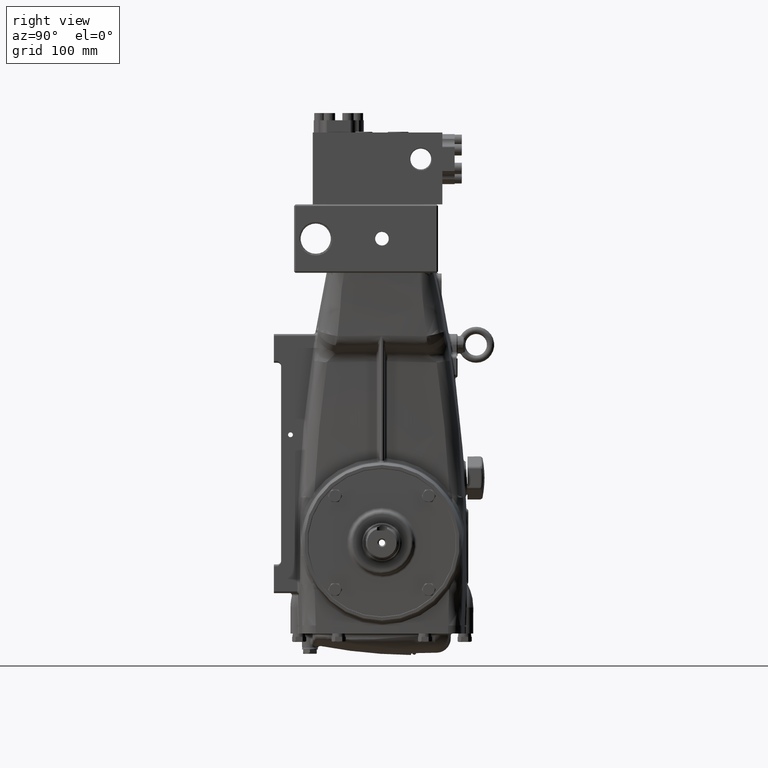
[diagram: clean part render]
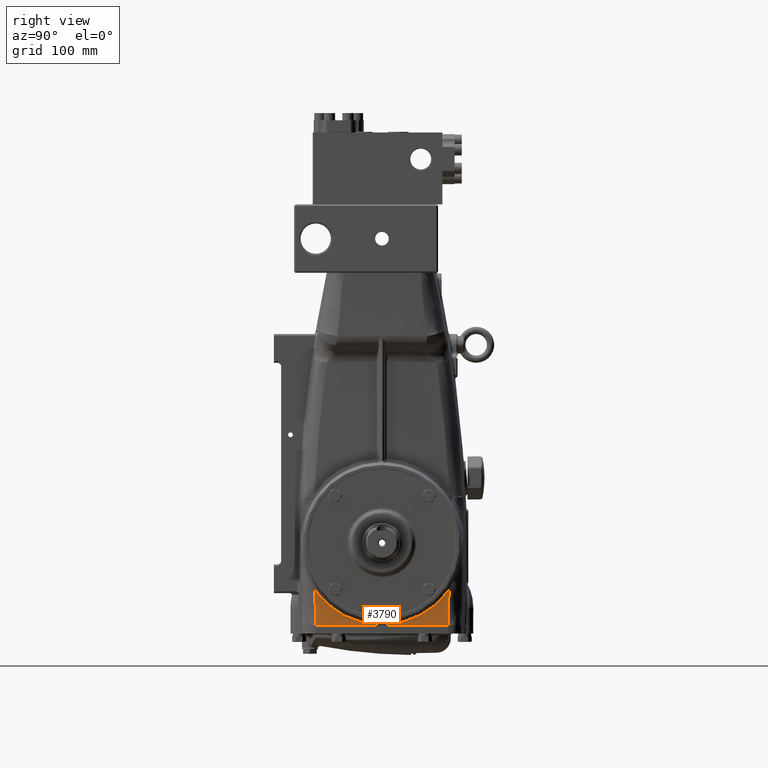
[diagram: same view with one face highlighted and labeled with its STEP entity id]
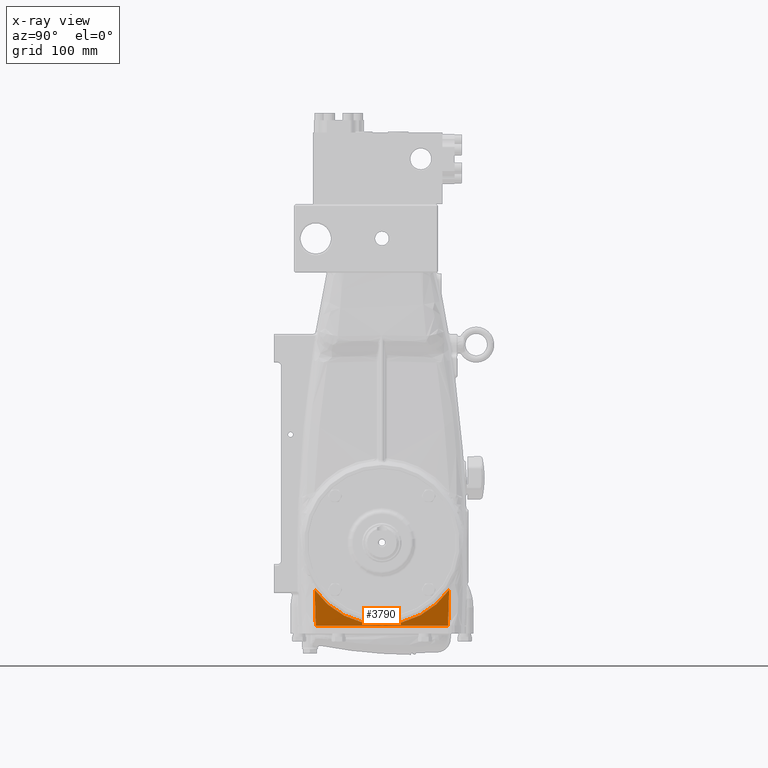
[diagram: x-ray of the same camera — body ghosted, the highlighted face saturated]
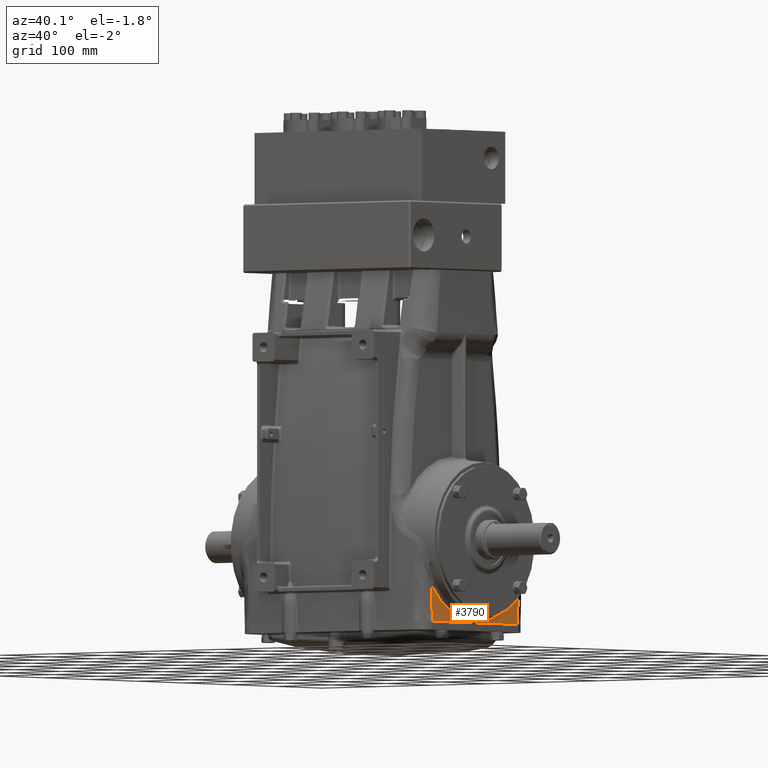
[diagram: same view with one face highlighted and labeled with its STEP entity id]
A machine part, right view. The second image highlights one B-rep face of the part: STEP entity #3790.
The next image is the same camera in x-ray: the body ghosted, the highlighted face saturated — about 0% of this face is hidden behind the body in this view.
A second angle (auxiliary view) of the same face is appended — the face is thin or edge-on in the first view.
In plain terms, the highlighted cylindrical surface (partial cylindrical patch) has radius 1800 mm, axis along (0, 0, 1).
Its self-contained STEP definition (entity closure, byte-faithful):
#3790 = ADVANCED_FACE ( 'NONE', ( #25463 ), #74864, .T. ) ;
#4067 = CARTESIAN_POINT ( 'NONE',  ( 6.671523450271858557, 1.749093421267381210, -4.138678691375889507 ) ) ;
#4670 = EDGE_LOOP ( 'NONE', ( #74125, #64896, #47239, #36502 ) ) ;
#4861 = CARTESIAN_POINT ( 'NONE',  ( 6.667287197148020539, 1.912214584812738538, -4.065908431730054673 ) ) ;
#5657 = EDGE_CURVE ( 'NONE', #21106, #68128, #52418, .T. ) ;
#5671 = CARTESIAN_POINT ( 'NONE',  ( 6.671528641175936691, -1.748954384408057283, -4.138771120709106022 ) ) ;
#9236 = DIRECTION ( 'NONE',  ( -0.000000000000000000, -0.000000000000000000, -1.000000000000000000 ) ) ;
#9640 = EDGE_CURVE ( 'NONE', #59399, #21106, #27422, .T. ) ;
#11056 = CARTESIAN_POINT ( 'NONE',  ( 6.597533551606669988, -3.675500699604243415, -2.579072720005474384 ) ) ;
#11403 = AXIS2_PLACEMENT_3D ( 'NONE', #64757, #9236, #65156 ) ;
#16238 = CARTESIAN_POINT ( 'NONE',  ( 6.642305184134769114, 2.681896248358120349, -3.605339320502077172 ) ) ;
#16488 = VERTEX_POINT ( 'NONE', #20030 ) ;
#16648 = CARTESIAN_POINT ( 'NONE',  ( 6.658016633010156227, 2.229336619001465181, -3.901157203632485970 ) ) ;
#17451 = CARTESIAN_POINT ( 'NONE',  ( 6.692914833384060458, -0.1790402785762323090, -4.489344671802183662 ) ) ;
#20030 = CARTESIAN_POINT ( 'NONE',  ( 6.600559661187499039, 3.616763065107670982, -4.527559055118112852 ) ) ;
#20907 = CARTESIAN_POINT ( 'NONE',  ( 6.600559661187499039, 3.616763065107670982, -4.527559055118112852 ) ) ;
#21106 = VERTEX_POINT ( 'NONE', #11056 ) ;
#22720 = CARTESIAN_POINT ( 'NONE',  ( 6.692910483785691866, 0.3597966936034024399, -4.489276054180149522 ) ) ;
#25463 = FACE_OUTER_BOUND ( 'NONE', #4670, .T. ) ;
#27422 = B_SPLINE_CURVE_WITH_KNOTS ( 'NONE', 3,
 ( #43108, #62910, #49197, #61349 ),
 .UNSPECIFIED., .F., .F.,
 ( 4, 4 ),
 ( 0.000000000000000000, 0.8597203773805796034 ),
 .UNSPECIFIED. ) ;
#27507 = AXIS2_PLACEMENT_3D ( 'NONE', #61158, #55489, #49805 ) ;
#27778 = CARTESIAN_POINT ( 'NONE',  ( 6.598133773210168584, 3.663949649407236109, -3.228646741539654030 ) ) ;
#30002 = CARTESIAN_POINT ( 'NONE',  ( 6.597533741380625649, 3.675498324507858516, -2.579286611907321891 ) ) ;
#30381 = CARTESIAN_POINT ( 'NONE',  ( 6.597533741380625649, 3.675498324507858516, -2.579286611907321891 ) ) ;
#34845 = CARTESIAN_POINT ( 'NONE',  ( 6.679044343982985410, -1.412051229608699554, -4.265410488873430772 ) ) ;
#35245 = CARTESIAN_POINT ( 'NONE',  ( 6.608406078776395631, -3.461874875582301225, -2.865058184638765493 ) ) ;
#35647 = CARTESIAN_POINT ( 'NONE',  ( 6.682258420111240937, -1.241030168909060816, -4.318183091132570262 ) ) ;
#36502 = ORIENTED_EDGE ( 'NONE', *, *, #5657, .F. ) ;
#37790 = EDGE_CURVE ( 'NONE', #16488, #59399, #76024, .T. ) ;
#38254 = EDGE_CURVE ( 'NONE', #68128, #16488, #53679, .T. ) ;
#41728 = CARTESIAN_POINT ( 'NONE',  ( 6.636738038248751081, 2.824327107603394449, -3.494848095035095525 ) ) ;
#42132 = CARTESIAN_POINT ( 'NONE',  ( 6.690175831725160727, 0.7146790689677712249, -4.446745427592658118 ) ) ;
#43108 = CARTESIAN_POINT ( 'NONE',  ( 6.600560107624472650, -3.616754329098800458, -4.527559055118112852 ) ) ;
#47239 = ORIENTED_EDGE ( 'NONE', *, *, #38254, .F. ) ;
#48623 = CARTESIAN_POINT ( 'NONE',  ( 6.667211767562189806, -1.915048950395180416, -4.064603564983339190 ) ) ;
#49197 = CARTESIAN_POINT ( 'NONE',  ( 6.598133784331044360, -3.663949436207059929, -3.228511429368864594 ) ) ;
#49805 = DIRECTION ( 'NONE',  ( -1.000000000000000000, 0.000000000000000000, 0.000000000000000000 ) ) ;
#51695 = CARTESIAN_POINT ( 'NONE',  ( 6.597533741380625649, 3.675498324507858516, -2.579286611907321891 ) ) ;
#52418 = B_SPLINE_CURVE_WITH_KNOTS ( 'NONE', 3,
 ( #66861, #71730, #35245, #53907, #59580, #79380, #59982, #48623, #5671, #34845, #35647, #78974, #60375, #60774, #17451, #22720, #42132, #79776, #72128, #4067, #4861, #16648, #66467, #16238, #41728, #78172, #53515, #30381 ),
 .UNSPECIFIED., .F., .F.,
 ( 4, 2, 2, 2, 2, 2, 2, 2, 2, 2, 2, 2, 2, 4 ),
 ( 0.000000000000000000, 0.06249999999999990979, 0.1250000000000000833, 0.2500000000000000555, 0.3125000000000000555, 0.3750000000000000000, 0.4375000000000000000, 0.5000000000000001110, 0.6250000000000000000, 0.6875000000000001110, 0.7500000000000000000, 0.8125000000000000000, 0.8750000000000000000, 1.000000000000000000 ),
 .UNSPECIFIED. ) ;
#52491 = CARTESIAN_POINT ( 'NONE',  ( 6.599185956385112739, 3.643645982618861190, -3.876515890626689664 ) ) ;
#53515 = CARTESIAN_POINT ( 'NONE',  ( 6.608350737143819487, 3.467218479489905469, -2.875920743815468139 ) ) ;
#53679 = B_SPLINE_CURVE_WITH_KNOTS ( 'NONE', 3,
 ( #51695, #27778, #52491, #20907 ),
 .UNSPECIFIED., .F., .F.,
 ( 4, 4 ),
 ( 0.1403704987797375070, 0.9999999999999998890 ),
 .UNSPECIFIED. ) ;
#53907 = CARTESIAN_POINT ( 'NONE',  ( 6.619688493682759578, -3.222929541059295300, -3.131285696230629689 ) ) ;
#55489 = DIRECTION ( 'NONE',  ( 0.000000000000000000, 0.000000000000000000, 1.000000000000000000 ) ) ;
#59399 = VERTEX_POINT ( 'NONE', #68549 ) ;
#59580 = CARTESIAN_POINT ( 'NONE',  ( 6.625460801147490031, -3.094203919146860660, -3.258554609315820194 ) ) ;
#59982 = CARTESIAN_POINT ( 'NONE',  ( 6.653239022284004989, -2.392250013201787429, -3.816179821714705156 ) ) ;
#60375 = CARTESIAN_POINT ( 'NONE',  ( 6.689501345887054917, -0.7179623845748371869, -4.435221782638389065 ) ) ;
#60774 = CARTESIAN_POINT ( 'NONE',  ( 6.692219664434479576, -0.3608429735039496156, -4.478416507109796107 ) ) ;
#61158 = CARTESIAN_POINT ( 'NONE',  ( -64.17322834645669616, 0.000000000000000000, -4.527559055118112852 ) ) ;
#61349 = CARTESIAN_POINT ( 'NONE',  ( 6.597533551606669988, -3.675500699604243415, -2.579072720005474384 ) ) ;
#62910 = CARTESIAN_POINT ( 'NONE',  ( 6.599186148564321286, -3.643642287256326107, -3.876447862265694599 ) ) ;
#64757 = CARTESIAN_POINT ( 'NONE',  ( -64.17322834645669616, 0.000000000000000000, -4.527559055118112852 ) ) ;
#64896 = ORIENTED_EDGE ( 'NONE', *, *, #37790, .F. ) ;
#65156 = DIRECTION ( 'NONE',  ( -1.000000000000000000, 0.000000000000000000, 0.000000000000000000 ) ) ;
#66467 = CARTESIAN_POINT ( 'NONE',  ( 6.652981876809199946, 2.383338439883519566, -3.809178286712269657 ) ) ;
#66861 = CARTESIAN_POINT ( 'NONE',  ( 6.597533551606669988, -3.675500699604243415, -2.579072720005474384 ) ) ;
#68128 = VERTEX_POINT ( 'NONE', #30002 ) ;
#68549 = CARTESIAN_POINT ( 'NONE',  ( 6.600560107624472650, -3.616754329098800458, -4.527559055118112852 ) ) ;
#71730 = CARTESIAN_POINT ( 'NONE',  ( 6.602862629041374554, -3.572890493093281439, -2.725421352973504074 ) ) ;
#72128 = CARTESIAN_POINT ( 'NONE',  ( 6.679010268581659027, 1.413671876377852188, -4.264841256172280382 ) ) ;
#74125 = ORIENTED_EDGE ( 'NONE', *, *, #9640, .F. ) ;
#74864 = CYLINDRICAL_SURFACE ( 'NONE', #27507, 70.86614173228346658 ) ;
#76024 = CIRCLE ( 'NONE', #11403, 70.86614173228346658 ) ;
#78172 = CARTESIAN_POINT ( 'NONE',  ( 6.619877651121685247, 3.227795410308004431, -3.141557066941856657 ) ) ;
#78974 = CARTESIAN_POINT ( 'NONE',  ( 6.687486794212058605, -0.8939857719387427348, -4.403088876112462025 ) ) ;
#79380 = CARTESIAN_POINT ( 'NONE',  ( 6.642467742448116219, -2.687189430058990691, -3.614890328948889398 ) ) ;
#79776 = CARTESIAN_POINT ( 'NONE',  ( 6.682276915614790980, 1.240206250839115620, -4.318489319369232859 ) ) ;